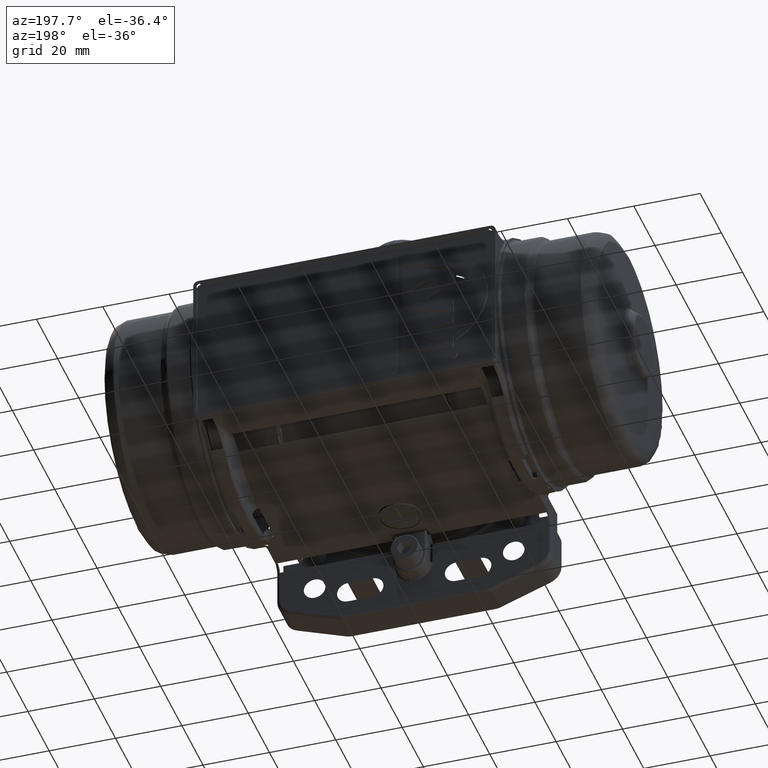
[diagram: clean part render]
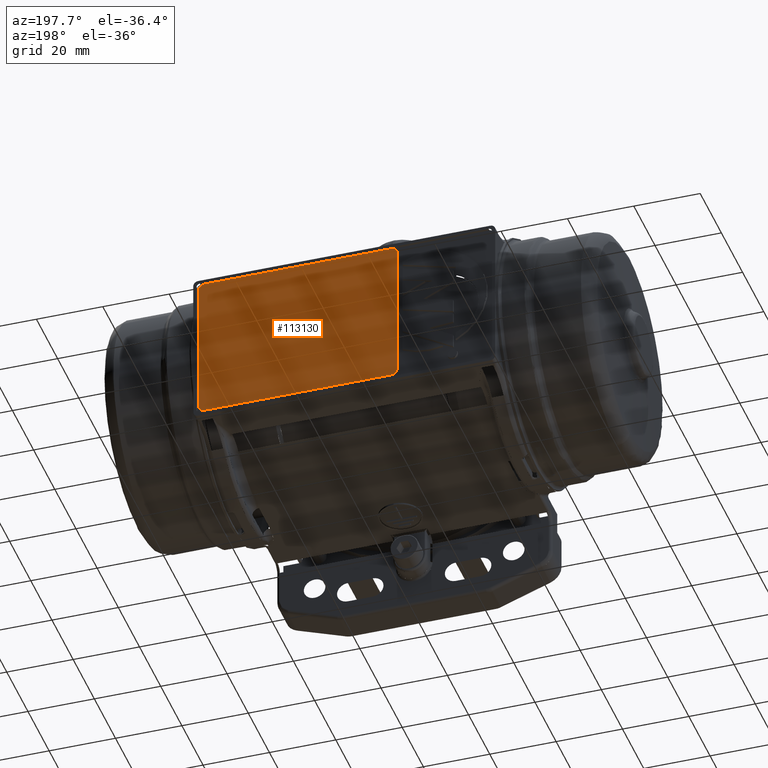
[diagram: same view with one face highlighted and labeled with its STEP entity id]
A machine part, auxiliary view. The second image highlights one B-rep face of the part: STEP entity #113130.
In plain terms, the highlighted planar face has unit normal (0, 1, 0).
Its self-contained STEP definition (entity closure, byte-faithful):
#3683 = FACE_OUTER_BOUND ( 'NONE', #76760, .T. ) ;
#6669 = VERTEX_POINT ( 'NONE', #119092 ) ;
#7929 = EDGE_CURVE ( 'NONE', #104750, #45620, #18527, .T. ) ;
#8155 = ORIENTED_EDGE ( 'NONE', *, *, #118892, .T. ) ;
#8991 = DIRECTION ( 'NONE',  ( 1.000000000000000000, 0.0000000000000000000, 0.0000000000000000000 ) ) ;
#9858 = ORIENTED_EDGE ( 'NONE', *, *, #99497, .T. ) ;
#13287 = CARTESIAN_POINT ( 'NONE',  ( 44.00499156200000100, 37.34327370800000500, -0.002992352999999294900 ) ) ;
#16102 = CARTESIAN_POINT ( 'NONE',  ( 14.00499156200000300, 37.34327370800000500, 22.49700764700000000 ) ) ;
#18424 = PLANE ( 'NONE',  #84874 ) ;
#18527 = LINE ( 'NONE', #13287, #89639 ) ;
#21365 = DIRECTION ( 'NONE',  ( 1.000000000000000000, 0.0000000000000000000, 0.0000000000000000000 ) ) ;
#21711 = CIRCLE ( 'NONE', #119032, 2.000000000000001800 ) ;
#21788 = CARTESIAN_POINT ( 'NONE',  ( -13.99500843820510100, 37.34327370800000500, -22.50299235300000000 ) ) ;
#23248 = LINE ( 'NONE', #16102, #85257 ) ;
#24419 = EDGE_CURVE ( 'NONE', #6669, #62364, #116887, .T. ) ;
#25840 = EDGE_CURVE ( 'NONE', #62364, #119567, #57511, .T. ) ;
#26462 = DIRECTION ( 'NONE',  ( 6.545359601909829200E-031, 1.000000000000000000, 1.936266862709859200E-061 ) ) ;
#26866 = CARTESIAN_POINT ( 'NONE',  ( -15.99500843799999900, 37.34327370800000500, 22.49700764700000000 ) ) ;
#28840 = CARTESIAN_POINT ( 'NONE',  ( 44.00499156200000100, 37.34327370800000500, -20.50299235300000000 ) ) ;
#30409 = AXIS2_PLACEMENT_3D ( 'NONE', #50634, #117498, #41287 ) ;
#30646 = DIRECTION ( 'NONE',  ( -1.479114197289395800E-031, 0.0000000000000000000, -1.000000000000000000 ) ) ;
#30966 = VERTEX_POINT ( 'NONE', #123347 ) ;
#31797 = CIRCLE ( 'NONE', #102140, 2.000000000000000000 ) ;
#33161 = ORIENTED_EDGE ( 'NONE', *, *, #90194, .T. ) ;
#33263 = ORIENTED_EDGE ( 'NONE', *, *, #7929, .T. ) ;
#36497 = DIRECTION ( 'NONE',  ( 1.000000000000000000, 0.0000000000000000000, 0.0000000000000000000 ) ) ;
#39486 = CARTESIAN_POINT ( 'NONE',  ( -15.99500843799999900, 37.34327370800000500, -0.002992352999999294900 ) ) ;
#41140 = CARTESIAN_POINT ( 'NONE',  ( 44.00499156200000100, 37.34327370800000500, 20.49700764700000000 ) ) ;
#41287 = DIRECTION ( 'NONE',  ( 1.000000000000000000, 0.0000000000000000000, 0.0000000000000000000 ) ) ;
#42760 = VECTOR ( 'NONE', #101334, 1000.000000000000000 ) ;
#45620 = VERTEX_POINT ( 'NONE', #28840 ) ;
#46109 = CARTESIAN_POINT ( 'NONE',  ( -15.99500843799999900, 37.34327370800000500, 20.49700764741020000 ) ) ;
#47456 = CARTESIAN_POINT ( 'NONE',  ( 42.00499156200000100, 37.34327370800000500, 20.49700764700000000 ) ) ;
#49902 = ORIENTED_EDGE ( 'NONE', *, *, #25840, .T. ) ;
#50081 = DIRECTION ( 'NONE',  ( 1.479114197289395800E-031, 0.0000000000000000000, 1.000000000000000000 ) ) ;
#50467 = LINE ( 'NONE', #91598, #42760 ) ;
#50634 = CARTESIAN_POINT ( 'NONE',  ( -13.99500843800000100, 37.34327370800000500, 20.49700764700000000 ) ) ;
#55208 = ORIENTED_EDGE ( 'NONE', *, *, #65439, .T. ) ;
#57511 = CIRCLE ( 'NONE', #30409, 2.000000000000000000 ) ;
#62364 = VERTEX_POINT ( 'NONE', #46109 ) ;
#65439 = EDGE_CURVE ( 'NONE', #82265, #104750, #21711, .T. ) ;
#65675 = DIRECTION ( 'NONE',  ( -6.545359601909829200E-031, 1.000000000000000000, 0.0000000000000000000 ) ) ;
#75079 = DIRECTION ( 'NONE',  ( 1.000000000000000000, -6.545359601909829200E-031, 1.479114197289395800E-031 ) ) ;
#76760 = EDGE_LOOP ( 'NONE', ( #103122, #8155, #96130, #49902, #33161, #55208, #33263, #9858 ) ) ;
#82265 = VERTEX_POINT ( 'NONE', #124979 ) ;
#84324 = CARTESIAN_POINT ( 'NONE',  ( -13.99500843800000100, 37.34327370800000500, -20.50299235300000000 ) ) ;
#84874 = AXIS2_PLACEMENT_3D ( 'NONE', #26866, #26462, #75079 ) ;
#85257 = VECTOR ( 'NONE', #93062, 1000.000000000000000 ) ;
#89639 = VECTOR ( 'NONE', #30646, 1000.000000000000000 ) ;
#90180 = CIRCLE ( 'NONE', #117019, 2.000000000000001800 ) ;
#90194 = EDGE_CURVE ( 'NONE', #119567, #82265, #23248, .T. ) ;
#90784 = EDGE_CURVE ( 'NONE', #30966, #113865, #50467, .T. ) ;
#91103 = VECTOR ( 'NONE', #50081, 1000.000000000000000 ) ;
#91598 = CARTESIAN_POINT ( 'NONE',  ( 14.00499156200000300, 37.34327370800000500, -22.50299235300000000 ) ) ;
#93062 = DIRECTION ( 'NONE',  ( 1.000000000000000000, -6.545359601909829200E-031, 1.479114197289395800E-031 ) ) ;
#96130 = ORIENTED_EDGE ( 'NONE', *, *, #24419, .T. ) ;
#99149 = DIRECTION ( 'NONE',  ( -6.545359601909829200E-031, 1.000000000000000000, 0.0000000000000000000 ) ) ;
#99497 = EDGE_CURVE ( 'NONE', #45620, #30966, #90180, .T. ) ;
#101334 = DIRECTION ( 'NONE',  ( -1.000000000000000000, 6.545359601909829200E-031, -1.479114197289395800E-031 ) ) ;
#102140 = AXIS2_PLACEMENT_3D ( 'NONE', #84324, #65675, #36497 ) ;
#103122 = ORIENTED_EDGE ( 'NONE', *, *, #90784, .T. ) ;
#104750 = VERTEX_POINT ( 'NONE', #41140 ) ;
#113130 = ADVANCED_FACE ( 'NONE', ( #3683 ), #18424, .T. ) ;
#113865 = VERTEX_POINT ( 'NONE', #21788 ) ;
#115164 = DIRECTION ( 'NONE',  ( -6.545359601909829200E-031, 1.000000000000000000, 0.0000000000000000000 ) ) ;
#116887 = LINE ( 'NONE', #39486, #91103 ) ;
#117019 = AXIS2_PLACEMENT_3D ( 'NONE', #117816, #99149, #21365 ) ;
#117498 = DIRECTION ( 'NONE',  ( -6.545359601909829200E-031, 1.000000000000000000, 0.0000000000000000000 ) ) ;
#117816 = CARTESIAN_POINT ( 'NONE',  ( 42.00499156200000100, 37.34327370800000500, -20.50299235300000000 ) ) ;
#118892 = EDGE_CURVE ( 'NONE', #113865, #6669, #31797, .T. ) ;
#118910 = CARTESIAN_POINT ( 'NONE',  ( -13.99500843800000100, 37.34327370800000500, 22.49700764700000000 ) ) ;
#119032 = AXIS2_PLACEMENT_3D ( 'NONE', #47456, #115164, #8991 ) ;
#119092 = CARTESIAN_POINT ( 'NONE',  ( -15.99500843799999900, 37.34327370800000500, -20.50299235258980000 ) ) ;
#119567 = VERTEX_POINT ( 'NONE', #118910 ) ;
#123347 = CARTESIAN_POINT ( 'NONE',  ( 42.00499156200000100, 37.34327370800000500, -22.50299235300000000 ) ) ;
#124979 = CARTESIAN_POINT ( 'NONE',  ( 42.00499156200000100, 37.34327370800000500, 22.49700764700000000 ) ) ;